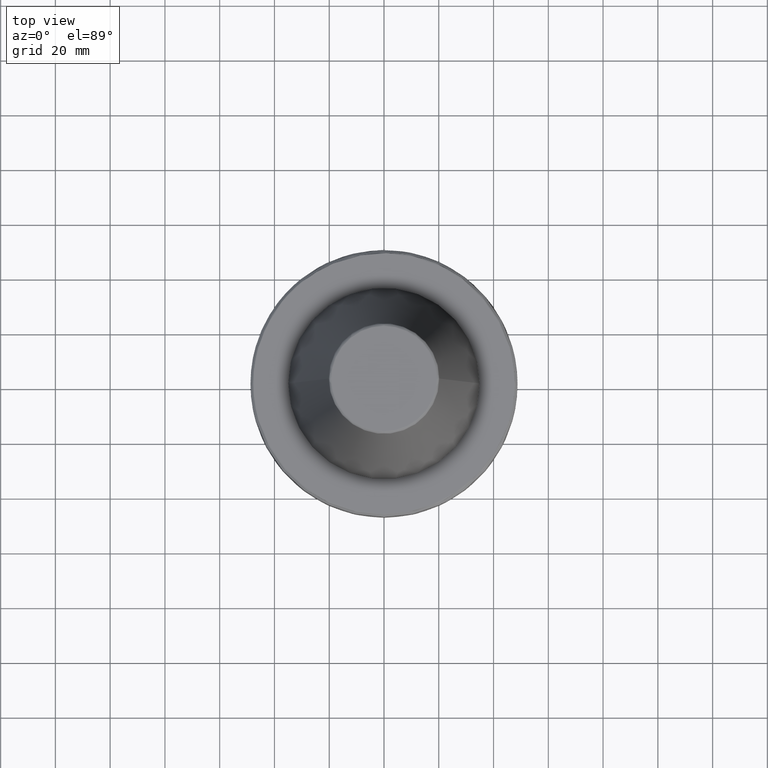
[diagram: clean part render]
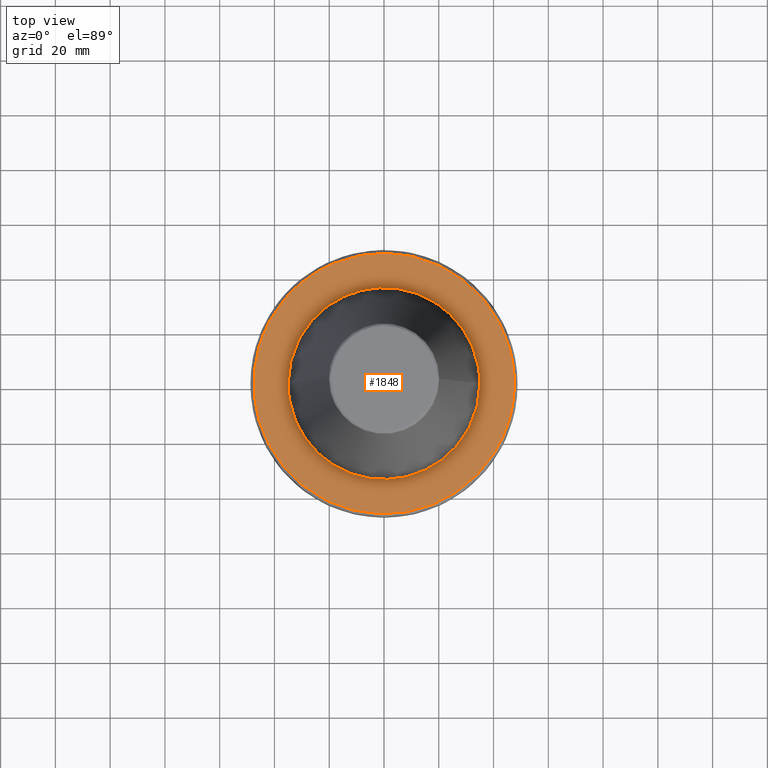
[diagram: same view with one face highlighted and labeled with its STEP entity id]
A machine part, top view. The second image highlights one B-rep face of the part: STEP entity #1848.
In plain terms, the highlighted planar face has unit normal (0, 0, 1).
Its self-contained STEP definition (entity closure, byte-faithful):
#16 = CARTESIAN_POINT ( 'NONE',  ( 29.58867595935849000, 37.26711317191480800, -3.200000000000000600 ) ) ;
#22 = CARTESIAN_POINT ( 'NONE',  ( -34.42781351200215300, 6.302914691289114300, -3.200000000000000200 ) ) ;
#23 = CARTESIAN_POINT ( 'NONE',  ( -35.00000000000000000, 4.286263797015737300E-015, -3.200000000000000600 ) ) ;
#28 = CARTESIAN_POINT ( 'NONE',  ( 43.83677434805175500, 18.51023748605553000, -3.199999999999999700 ) ) ;
#34 = CARTESIAN_POINT ( 'NONE',  ( -30.38123465407781200, 17.39569460392992200, -3.199999999999998800 ) ) ;
#50 = DIRECTION ( 'NONE',  ( 1.000000000000000000, 0.0000000000000000000, -0.0000000000000000000 ) ) ;
#52 = CARTESIAN_POINT ( 'NONE',  ( -19.40440699318107300, 29.12859832659959000, -3.200000000000000200 ) ) ;
#54 = CARTESIAN_POINT ( 'NONE',  ( 33.82018250935284000, -9.135985986330826600, -3.199999999999999700 ) ) ;
#65 = CARTESIAN_POINT ( 'NONE',  ( -10.22234251034705100, 33.50782965913711600, -3.200000000000000200 ) ) ;
#68 = CARTESIAN_POINT ( 'NONE',  ( 29.45563184198762100, -18.90427742788056500, -3.200000000000000600 ) ) ;
#79 = CARTESIAN_POINT ( 'NONE',  ( 5.446642676596225000, 34.57547315144680800, -3.200000000000000600 ) ) ;
#83 = CARTESIAN_POINT ( 'NONE',  ( 18.16253543797202500, -29.94197833481824500, -3.200000000000000600 ) ) ;
#92 = CARTESIAN_POINT ( 'NONE',  ( 12.81732741286386600, 32.56865578623165900, -3.200000000000001100 ) ) ;
#93 = CARTESIAN_POINT ( 'NONE',  ( 6.856257133420490900, -34.32241613434766900, -3.199999999999999700 ) ) ;
#97 = B_SPLINE_CURVE_WITH_KNOTS ( 'NONE', 3,
 ( #1762, #1656, #2515, #1744, #2701, #1736, #1759, #1653, #1668, #1670, #1748, #1732, #1731, #1725, #1719, #1716, #1715, #1710, #1708, #1705, #1700, #1699, #1690, #1689, #1684, #1682, #1941, #1664, #1677, #2159, #2144, #2363, #1797, #1648, #1646, #1638, #1637, #1634, #1629, #1620, #1616, #1615, #1610, #1609, #1604, #1599, #1594, #1593, #1588, #1574, #1573, #1568, #1564, #1557, #1551, #1544, #1543, #1534, #1527, #1518, #1517, #1514, #1513, #1510, #1501, #1499, #1489, #1488, #1484, #1479, #1477, #1472, #1465, #1461, #1460, #1456, #1453, #1451, #1449, #1445, #1442, #1440, #1433, #1425, #1424, #1421, #1420, #1416, #1409, #1408, #1404, #1401, #1397, #1392, #1385, #1381, #1375, #1366, #1364, #1360, #1353, #1349, #1348, #1344, #1337, #1331, #1325, #1324 ),
 .UNSPECIFIED., .F., .F.,
 ( 4, 1, 1, 1, 1, 1, 2, 2, 1, 1, 1, 1, 2, 2, 1, 1, 1, 2, 2, 2, 1, 1, 1, 1, 2, 2, 1, 1, 1, 1, 2, 2, 1, 1, 1, 1, 1, 2, 2, 2, 1, 1, 1, 1, 1, 2, 2, 1, 1, 1, 1, 2, 2, 1, 1, 1, 2, 2, 2, 1, 1, 1, 1, 2, 2, 1, 1, 1, 1, 2, 2, 1, 1, 1, 1, 1, 2, 2, 4 ),
 ( 0.0000000000000000000, 0.03125000000000047200, 0.04687500000000072200, 0.05468750000000088100, 0.05859375000000093000, 0.06054687500000095100, 0.06152343750000092300, 0.06250000000000088800, 0.09375000000000043000, 0.1093750000000001900, 0.1171875000000000800, 0.1210937499999999900, 0.1230468749999999200, 0.1249999999999998500, 0.1562499999999995300, 0.1718749999999993300, 0.1796874999999993100, 0.1835937499999992800, 0.1874999999999992500, 0.2499999999999999400, 0.2812500000000002200, 0.2968750000000003900, 0.3046875000000004400, 0.3085937500000004400, 0.3105468750000004400, 0.3125000000000005000, 0.3437500000000003300, 0.3593750000000002800, 0.3671875000000002800, 0.3710937500000002800, 0.3730468750000002200, 0.3750000000000002200, 0.4062500000000001100, 0.4218750000000000600, 0.4296875000000000000, 0.4335937500000000000, 0.4355468749999999400, 0.4365234374999999400, 0.4374999999999998900, 0.4999999999999983900, 0.5312499999999975600, 0.5468749999999971100, 0.5546874999999968900, 0.5585937499999967800, 0.5605468749999966700, 0.5615234374999966700, 0.5624999999999966700, 0.5937499999999962300, 0.6093749999999958900, 0.6171874999999956700, 0.6210937499999955600, 0.6230468749999956700, 0.6249999999999956700, 0.6562499999999958900, 0.6718749999999960000, 0.6796874999999961100, 0.6835937499999961100, 0.6874999999999960000, 0.7499999999999953400, 0.7812499999999950000, 0.7968749999999948900, 0.8046874999999948900, 0.8085937499999948900, 0.8105468749999948900, 0.8124999999999948900, 0.8437499999999962300, 0.8593749999999967800, 0.8671874999999970000, 0.8710937499999971100, 0.8730468749999972200, 0.8749999999999972200, 0.9062499999999974500, 0.9218749999999976700, 0.9296874999999977800, 0.9335937499999978900, 0.9355468749999978900, 0.9365234374999978900, 0.9374999999999978900, 1.000000000000000000 ),
 .UNSPECIFIED. ) ;
#106 = CARTESIAN_POINT ( 'NONE',  ( 26.81177841657013900, 22.55445595757559800, -3.200000000000000200 ) ) ;
#110 = CARTESIAN_POINT ( 'NONE',  ( -6.237098849438081200, -34.43979846253916600, -3.200000000000000200 ) ) ;
#119 = CARTESIAN_POINT ( 'NONE',  ( 32.48790124032222300, 13.02066417721462900, -3.200000000000000200 ) ) ;
#122 = CARTESIAN_POINT ( 'NONE',  ( -15.59116830090281700, -31.37487172761408500, -3.200000000000001500 ) ) ;
#129 = CARTESIAN_POINT ( 'NONE',  ( 44.89884780774589500, 15.80948444982595000, -3.200000000000000200 ) ) ;
#132 = CARTESIAN_POINT ( 'NONE',  ( 35.00000000000001400, 2.140949734381700300, -3.200000000000000600 ) ) ;
#133 = CARTESIAN_POINT ( 'NONE',  ( -29.00292566128046800, -19.59265025306582700, -3.200000000000000600 ) ) ;
#150 = CARTESIAN_POINT ( 'NONE',  ( -32.96036308136418600, -11.82808836360453800, -3.200000000000000600 ) ) ;
#152 = CARTESIAN_POINT ( 'NONE',  ( -28.52667124222444200, 38.13264634449122100, -3.200000000000000200 ) ) ;
#161 = CARTESIAN_POINT ( 'NONE',  ( 24.74573972520320100, 40.64394770848628000, -3.199999999999999700 ) ) ;
#206 = CARTESIAN_POINT ( 'NONE',  ( -1.415082110017375400, 47.56778356128077000, -3.200000000000001100 ) ) ;
#207 = AXIS2_PLACEMENT_3D ( 'NONE', #1181, #1176, #1169 ) ;
#244 = CARTESIAN_POINT ( 'NONE',  ( -13.13810827484324400, 45.73940813873869600, -3.200000000000001100 ) ) ;
#247 = EDGE_LOOP ( 'NONE', ( #4068, #596, #1161, #1224, #1767, #1575, #2358 ) ) ;
#250 = AXIS2_PLACEMENT_3D ( 'NONE', #2086, #2553, #50 ) ;
#314 = CARTESIAN_POINT ( 'NONE',  ( 43.72038509902864000, 18.78292708330470600, -3.200000000000000200 ) ) ;
#319 = CARTESIAN_POINT ( 'NONE',  ( 7.584584315874153000, 46.98600002214963200, -3.199999999999999700 ) ) ;
#344 = CARTESIAN_POINT ( 'NONE',  ( 15.87259900951194100, 44.89906720438591500, -3.199999999999999300 ) ) ;
#367 = CARTESIAN_POINT ( 'NONE',  ( -34.20919177140901000, 7.484680064057585900, -3.200000000000000200 ) ) ;
#385 = CARTESIAN_POINT ( 'NONE',  ( -29.57513658499466700, 18.71766838408074600, -3.200000000000000200 ) ) ;
#389 = CARTESIAN_POINT ( 'NONE',  ( 34.92696098682253600, -2.669108274075315400, -3.200000000000001100 ) ) ;
#400 = CARTESIAN_POINT ( 'NONE',  ( -19.21420423913537700, 29.25439692751829300, -3.200000000000001100 ) ) ;
#403 = CARTESIAN_POINT ( 'NONE',  ( 32.89666700154338500, -11.95639371354541900, -3.200000000000000600 ) ) ;
#411 = CARTESIAN_POINT ( 'NONE',  ( -7.342137192614635500, 34.22336994003888600, -3.200000000000000200 ) ) ;
#416 = CARTESIAN_POINT ( 'NONE',  ( 29.33615436353597900, -19.08915049026279600, -3.200000000000001100 ) ) ;
#423 = CARTESIAN_POINT ( 'NONE',  ( 6.138370408955123200, 34.45763170187248600, -3.200000000000000600 ) ) ;
#429 = CARTESIAN_POINT ( 'NONE',  ( 14.78401017750829600, -31.73425127813054300, -3.199999999999999700 ) ) ;
#438 = CARTESIAN_POINT ( 'NONE',  ( 13.98287206292189900, 32.10730462063747100, -3.200000000000000600 ) ) ;
#441 = CARTESIAN_POINT ( 'NONE',  ( 6.508170961267519600, -34.38960595214408000, -3.200000000000000200 ) ) ;
#448 = FACE_BOUND ( 'NONE', #1097, .T. ) ;
#450 = CARTESIAN_POINT ( 'NONE',  ( 28.70573247902078500, 20.02866069165706600, -3.200000000000000200 ) ) ;
#452 = CARTESIAN_POINT ( 'NONE',  ( -6.333832670997710000, -34.42214089842946100, -3.200000000000000200 ) ) ;
#460 = CARTESIAN_POINT ( 'NONE',  ( 32.52953514517933100, 12.91629066188748200, -3.200000000000001100 ) ) ;
#463 = CARTESIAN_POINT ( 'NONE',  ( -18.28000292855092800, -29.84963310932764500, -3.199999999999999700 ) ) ;
#478 = CARTESIAN_POINT ( 'NONE',  ( -29.21200324985685300, -19.27860445471714700, -3.200000000000000600 ) ) ;
#494 = CARTESIAN_POINT ( 'NONE',  ( -34.00795424931148100, -8.308886591280263200, -3.200000000000000600 ) ) ;
#570 = CARTESIAN_POINT ( 'NONE',  ( 20.91936532353698300, 42.74416180623448700, -3.200000000000000600 ) ) ;
#577 = CARTESIAN_POINT ( 'NONE',  ( 33.13646789430458700, 34.16474037057050600, -3.200000000000000600 ) ) ;
#584 = CARTESIAN_POINT ( 'NONE',  ( 43.28805540108506700, 19.78267870937098700, -3.200000000000000200 ) ) ;
#593 = CARTESIAN_POINT ( 'NONE',  ( -24.66047681321442300, 40.69683095873308800, -3.200000000000001100 ) ) ;
#596 = ORIENTED_EDGE ( 'NONE', *, *, #2294, .T. ) ;
#598 = CARTESIAN_POINT ( 'NONE',  ( 43.69747580304702700, 18.83616776526730200, -3.199999999999999700 ) ) ;
#646 = CARTESIAN_POINT ( 'NONE',  ( 27.43086430564404300, 38.90399569013028000, -3.199999999999999700 ) ) ;
#673 = CARTESIAN_POINT ( 'NONE',  ( -22.45806956475531600, 41.97089674870178300, -3.199999999999999700 ) ) ;
#703 = CARTESIAN_POINT ( 'NONE',  ( -33.22762448502673000, 11.02286519843548100, -3.199999999999999300 ) ) ;
#718 = CARTESIAN_POINT ( 'NONE',  ( -29.37554792989231300, 19.02846970913294200, -3.200000000000000600 ) ) ;
#720 = CARTESIAN_POINT ( 'NONE',  ( 35.00000000000000000, 0.0000000000000000000, -3.200000000000000600 ) ) ;
#730 = CARTESIAN_POINT ( 'NONE',  ( -16.63655267340255200, 30.83329837198616000, -3.200000000000001100 ) ) ;
#735 = CARTESIAN_POINT ( 'NONE',  ( 32.63327705773191000, -12.65220399757075000, -3.199999999999999700 ) ) ;
#745 = CARTESIAN_POINT ( 'NONE',  ( -6.612690763923023200, 34.36977381871476900, -3.200000000000000200 ) ) ;
#750 = CARTESIAN_POINT ( 'NONE',  ( 26.45700235552588400, -23.04041976314191200, -3.199999999999999300 ) ) ;
#762 = CARTESIAN_POINT ( 'NONE',  ( 6.302909256718462100, 34.42781451759762500, -3.199999999999999300 ) ) ;
#765 = CARTESIAN_POINT ( 'NONE',  ( 13.36300299978126000, -32.34918825183396500, -3.200000000000000600 ) ) ;
#775 = CARTESIAN_POINT ( 'NONE',  ( 17.39569460393197900, 30.38123465408075700, -3.200000000000000200 ) ) ;
#777 = CARTESIAN_POINT ( 'NONE',  ( 6.401592451894831700, -34.40960181707281900, -3.199999999999999700 ) ) ;
#783 = CARTESIAN_POINT ( 'NONE',  ( 4.460096613536384400, 47.37922375094827000, -3.200000000000001500 ) ) ;
#787 = CARTESIAN_POINT ( 'NONE',  ( 29.12859832661076400, 19.40440699316710000, -3.200000000000000200 ) ) ;
#791 = CARTESIAN_POINT ( 'NONE',  ( -9.135985986387860100, -33.82018250934229500, -3.199999999999999700 ) ) ;
#794 = CARTESIAN_POINT ( 'NONE',  ( 41.16595836708885500, 23.86724792863052300, -3.200000000000000200 ) ) ;
#796 = CARTESIAN_POINT ( 'NONE',  ( 33.50782965918070000, 10.22234251020762700, -3.199999999999999700 ) ) ;
#803 = CARTESIAN_POINT ( 'NONE',  ( -18.90427742788488900, -29.45563184198417900, -3.200000000000000600 ) ) ;
#812 = CARTESIAN_POINT ( 'NONE',  ( 9.354935358589495200, 46.65674270211674500, -3.200000000000000600 ) ) ;
#819 = CARTESIAN_POINT ( 'NONE',  ( -29.94197833479797300, -18.16253543799919300, -3.200000000000000600 ) ) ;
#829 = CARTESIAN_POINT ( 'NONE',  ( -34.32241613434451500, -6.856257133437938300, -3.200000000000000200 ) ) ;
#893 = CARTESIAN_POINT ( 'NONE',  ( -25.17660737734825100, 40.37832428545157600, -3.200000000000000200 ) ) ;
#926 = EDGE_CURVE ( 'NONE', #2958, #4100, #97, .T. ) ;
#971 = CARTESIAN_POINT ( 'NONE',  ( -10.01342565813241200, 46.52941323171096900, -3.200000000000000200 ) ) ;
#974 = CARTESIAN_POINT ( 'NONE',  ( 0.0000000000000000000, 0.0000000000000000000, -3.200000000000001500 ) ) ;
#993 = CARTESIAN_POINT ( 'NONE',  ( 25.99808194461567700, 39.85970698513112600, -3.200000000000000200 ) ) ;
#998 = EDGE_CURVE ( 'NONE', #4100, #3786, #3320, .T. ) ;
#1025 = CARTESIAN_POINT ( 'NONE',  ( -2.645014036823139400, 47.51138638385852200, -3.200000000000000600 ) ) ;
#1028 = CARTESIAN_POINT ( 'NONE',  ( -32.72251864197475200, 12.42068019834804300, -3.200000000000000600 ) ) ;
#1043 = CARTESIAN_POINT ( 'NONE',  ( -27.97287582442092500, 21.17444947139290100, -3.200000000000000600 ) ) ;
#1048 = CARTESIAN_POINT ( 'NONE',  ( 34.57546073590583500, -5.446709774287297600, -3.200000000000000200 ) ) ;
#1054 = CARTESIAN_POINT ( 'NONE',  ( 36.53624278579643200, 30.55028448884537800, -3.200000000000000600 ) ) ;
#1058 = CARTESIAN_POINT ( 'NONE',  ( -13.83968161197703100, 32.14999761353126200, -3.200000000000000200 ) ) ;
#1063 = CARTESIAN_POINT ( 'NONE',  ( 32.56865578623111200, -12.81732741286599300, -3.199999999999999700 ) ) ;
#1078 = CARTESIAN_POINT ( 'NONE',  ( -6.438461267135233300, 34.40272425953072900, -3.200000000000000200 ) ) ;
#1081 = CARTESIAN_POINT ( 'NONE',  ( 22.55445595765087700, -26.81177841650848100, -3.200000000000001500 ) ) ;
#1089 = CARTESIAN_POINT ( 'NONE',  ( 7.484680064034233900, 34.20919177141554000, -3.199999999999999700 ) ) ;
#1093 = CARTESIAN_POINT ( 'NONE',  ( 13.02066417721918300, -32.48790124032010600, -3.200000000000000600 ) ) ;
#1097 = EDGE_LOOP ( 'NONE', ( #2860, #1500 ) ) ;
#1103 = CARTESIAN_POINT ( 'NONE',  ( 18.71766838408140600, 29.57513658499558300, -3.200000000000000600 ) ) ;
#1108 = CARTESIAN_POINT ( 'NONE',  ( 2.140418918370826000, -34.99996756755254500, -3.199999999999999700 ) ) ;
#1117 = CARTESIAN_POINT ( 'NONE',  ( 29.25439692751638500, 19.21420423913906100, -3.200000000000000200 ) ) ;
#1119 = CARTESIAN_POINT ( 'NONE',  ( -11.95639371357037600, -32.89666700153875900, -3.200000000000000600 ) ) ;
#1123 = CARTESIAN_POINT ( 'NONE',  ( 34.22336994005794300, 7.342137192553624700, -3.200000000000000200 ) ) ;
#1125 = CARTESIAN_POINT ( 'NONE',  ( -19.08915049026184700, -29.33615436353641900, -3.200000000000000600 ) ) ;
#1137 = B_SPLINE_CURVE_WITH_KNOTS ( 'NONE', 3,
 ( #2926, #2939, #1714, #1709, #3791, #3759 ),
 .UNSPECIFIED., .F., .F.,
 ( 4, 2, 4 ),
 ( 0.0000000000000000000, 0.5000000000000000000, 1.000000000000000000 ),
 .UNSPECIFIED. ) ;
#1143 = CARTESIAN_POINT ( 'NONE',  ( -31.73425127810394000, -14.78401017754392500, -3.200000000000000600 ) ) ;
#1157 = CARTESIAN_POINT ( 'NONE',  ( -34.38960595214313500, -6.508170961272730500, -3.200000000000000600 ) ) ;
#1161 = ORIENTED_EDGE ( 'NONE', *, *, #1741, .T. ) ;
#1163 = CARTESIAN_POINT ( 'NONE',  ( 22.43503376051662800, 41.98321477246887700, -3.200000000000000600 ) ) ;
#1169 = DIRECTION ( 'NONE',  ( 1.000000000000000000, 0.0000000000000000000, 0.0000000000000000000 ) ) ;
#1176 = DIRECTION ( 'NONE',  ( -0.0000000000000000000, -0.0000000000000000000, 1.000000000000000000 ) ) ;
#1178 = DIRECTION ( 'NONE',  ( 1.000000000000000000, 0.0000000000000000000, 0.0000000000000000000 ) ) ;
#1181 = CARTESIAN_POINT ( 'NONE',  ( 0.0000000000000000000, 0.0000000000000000000, -3.200000000000001500 ) ) ;
#1218 = CARTESIAN_POINT ( 'NONE',  ( -30.00000000000000000, 36.93598507658067100, -3.200000000000001500 ) ) ;
#1224 = ORIENTED_EDGE ( 'NONE', *, *, #926, .T. ) ;
#1287 = CARTESIAN_POINT ( 'NONE',  ( 29.78434383588273700, 37.11093869942935400, -3.200000000000001100 ) ) ;
#1301 = DIRECTION ( 'NONE',  ( 1.000000000000000000, 0.0000000000000000000, 0.0000000000000000000 ) ) ;
#1324 = CARTESIAN_POINT ( 'NONE',  ( 45.61430141498814100, -13.55000000000001700, -3.200000000000001500 ) ) ;
#1325 = CARTESIAN_POINT ( 'NONE',  ( 44.92181312361564900, -15.88117119180926200, -3.200000000000000600 ) ) ;
#1331 = CARTESIAN_POINT ( 'NONE',  ( 44.05578048503274900, -18.14579602856428800, -3.200000000000001100 ) ) ;
#1333 = CARTESIAN_POINT ( 'NONE',  ( -23.93254399511004500, 41.13291324448347600, -3.199999999999999300 ) ) ;
#1337 = CARTESIAN_POINT ( 'NONE',  ( 42.99996010883646800, -20.37821948654144700, -3.200000000000000200 ) ) ;
#1344 = CARTESIAN_POINT ( 'NONE',  ( 42.98237818865935400, -20.41528033294669700, -3.199999999999999700 ) ) ;
#1348 = CARTESIAN_POINT ( 'NONE',  ( 42.94842543565792400, -20.48661267979043300, -3.199999999999999700 ) ) ;
#1349 = CARTESIAN_POINT ( 'NONE',  ( 42.89736886373451300, -20.59353772421794900, -3.200000000000000200 ) ) ;
#1350 = CARTESIAN_POINT ( 'NONE',  ( -34.71393053172149500, 4.522777660849747000, -3.199999999999999700 ) ) ;
#1353 = CARTESIAN_POINT ( 'NONE',  ( 42.77734476563084300, -20.84251516368223600, -3.199999999999999300 ) ) ;
#1358 = CARTESIAN_POINT ( 'NONE',  ( 41.10589712480054900, 23.97055010317598100, -3.200000000000000600 ) ) ;
#1360 = CARTESIAN_POINT ( 'NONE',  ( 42.53372818162753800, -21.33841271914445100, -3.200000000000000200 ) ) ;
#1364 = CARTESIAN_POINT ( 'NONE',  ( 42.03222146243693700, -22.32197853620333600, -3.199999999999999700 ) ) ;
#1366 = CARTESIAN_POINT ( 'NONE',  ( 40.97211381931980200, -24.25619299485906300, -3.199999999999999700 ) ) ;
#1367 = CARTESIAN_POINT ( 'NONE',  ( -32.59456622067332200, 12.75129574512329000, -3.200000000000000200 ) ) ;
#1373 = CARTESIAN_POINT ( 'NONE',  ( 6.146894581347632800, 47.20314471345571400, -3.200000000000001100 ) ) ;
#1375 = CARTESIAN_POINT ( 'NONE',  ( 39.96557434567207400, -25.85766165862904500, -3.200000000000000200 ) ) ;
#1381 = CARTESIAN_POINT ( 'NONE',  ( 39.20638976705200900, -26.96538805818731900, -3.200000000000000200 ) ) ;
#1382 = CARTESIAN_POINT ( 'NONE',  ( -23.89460483454596200, 25.60289613071151700, -3.199999999999999700 ) ) ;
#1385 = CARTESIAN_POINT ( 'NONE',  ( 39.15911966686138600, -27.03399514045408500, -3.200000000000000200 ) ) ;
#1386 = CARTESIAN_POINT ( 'NONE',  ( 34.45762826542811300, -6.138388980637482300, -3.200000000000000600 ) ) ;
#1392 = CARTESIAN_POINT ( 'NONE',  ( 39.06671061190711200, -27.16737028581813000, -3.199999999999999300 ) ) ;
#1397 = CARTESIAN_POINT ( 'NONE',  ( 38.92761599110149700, -27.36704069051690200, -3.199999999999999700 ) ) ;
#1398 = CARTESIAN_POINT ( 'NONE',  ( -13.12353511134512400, 32.44661293862448300, -3.200000000000000200 ) ) ;
#1401 = CARTESIAN_POINT ( 'NONE',  ( 38.59969460726873800, -27.83019210804948800, -3.199999999999999700 ) ) ;
#1402 = CARTESIAN_POINT ( 'NONE',  ( 32.10730462062537800, -13.98287206293925200, -3.200000000000001500 ) ) ;
#1404 = CARTESIAN_POINT ( 'NONE',  ( 37.93038276512478300, -28.74551016938989500, -3.200000000000000200 ) ) ;
#1406 = CARTESIAN_POINT ( 'NONE',  ( 30.16990998852274000, 36.79819512847421900, -3.200000000000000200 ) ) ;
#1408 = CARTESIAN_POINT ( 'NONE',  ( 36.53788278292293500, -30.53220719717160100, -3.199999999999999700 ) ) ;
#1409 = CARTESIAN_POINT ( 'NONE',  ( 35.25195200175464500, -31.98833762972892800, -3.200000000000000200 ) ) ;
#1411 = CARTESIAN_POINT ( 'NONE',  ( -4.264027316417490000, 34.80519685506052200, -3.200000000000000200 ) ) ;
#1416 = CARTESIAN_POINT ( 'NONE',  ( 34.29747021916345100, -32.98419360930062500, -3.200000000000000200 ) ) ;
#1417 = CARTESIAN_POINT ( 'NONE',  ( 20.02866069168999600, -28.70573247899380900, -3.199999999999999700 ) ) ;
#1420 = CARTESIAN_POINT ( 'NONE',  ( 34.23960624552837800, -33.04425963288301200, -3.200000000000000600 ) ) ;
#1421 = CARTESIAN_POINT ( 'NONE',  ( 34.12517462232580800, -33.16242677105037000, -3.200000000000000200 ) ) ;
#1424 = CARTESIAN_POINT ( 'NONE',  ( 33.95310552516566800, -33.33919882938212000, -3.199999999999998800 ) ) ;
#1425 = CARTESIAN_POINT ( 'NONE',  ( 33.54865932863149400, -33.74831642305488800, -3.199999999999999700 ) ) ;
#1427 = CARTESIAN_POINT ( 'NONE',  ( 11.02286519840483300, 33.22762448503527100, -3.200000000000000200 ) ) ;
#1428 = CIRCLE ( 'NONE', #1913, 47.58431457505077600 ) ;
#1430 = CARTESIAN_POINT ( 'NONE',  ( 12.91629066188754700, -32.52953514517923800, -3.200000000000000600 ) ) ;
#1433 = CARTESIAN_POINT ( 'NONE',  ( 32.72796038958762900, -34.55314944066136500, -3.200000000000000200 ) ) ;
#1440 = CARTESIAN_POINT ( 'NONE',  ( 31.03933632759788000, -36.10920679691846400, -3.200000000000000600 ) ) ;
#1441 = CARTESIAN_POINT ( 'NONE',  ( 19.02846970913313700, 29.37554792989258000, -3.199999999999999700 ) ) ;
#1442 = CARTESIAN_POINT ( 'NONE',  ( 29.51098510206039500, -37.35106965264294100, -3.200000000000000600 ) ) ;
#1444 = CARTESIAN_POINT ( 'NONE',  ( -2.668954907877634200, -34.92698936521405500, -3.200000000000001500 ) ) ;
#1445 = CARTESIAN_POINT ( 'NONE',  ( 26.34633708778084600, -39.71226124076409300, -3.200000000000000600 ) ) ;
#1449 = CARTESIAN_POINT ( 'NONE',  ( 24.12040806564777600, -41.10236839384867800, -3.200000000000000200 ) ) ;
#1451 = CARTESIAN_POINT ( 'NONE',  ( 21.63374689601685200, -42.38248318243609700, -3.199999999999999700 ) ) ;
#1452 = CARTESIAN_POINT ( 'NONE',  ( 30.83329837203913100, 16.63655267329933100, -3.200000000000000600 ) ) ;
#1453 = CARTESIAN_POINT ( 'NONE',  ( 21.49105359669900000, -42.45501299875800100, -3.199999999999999300 ) ) ;
#1454 = CARTESIAN_POINT ( 'NONE',  ( -12.65220399757766000, -32.63327705773065200, -3.199999999999999300 ) ) ;
#1456 = CARTESIAN_POINT ( 'NONE',  ( 21.20113734484077700, -42.60054918465715400, -3.200000000000000200 ) ) ;
#1460 = CARTESIAN_POINT ( 'NONE',  ( 20.76531420096193200, -42.81655896316620200, -3.199999999999998800 ) ) ;
#1461 = CARTESIAN_POINT ( 'NONE',  ( 19.74175216927086400, -43.30452027730983400, -3.199999999999998800 ) ) ;
#1463 = CARTESIAN_POINT ( 'NONE',  ( 34.36977381872005600, 6.612690763906142500, -3.200000000000000200 ) ) ;
#1465 = CARTESIAN_POINT ( 'NONE',  ( 17.66806265532686700, -44.21619689608675000, -3.200000000000000600 ) ) ;
#1467 = CARTESIAN_POINT ( 'NONE',  ( -23.04041976309767400, -26.45700235558571100, -3.199999999999999700 ) ) ;
#1472 = CARTESIAN_POINT ( 'NONE',  ( 15.84507372812600100, -44.88749798159219800, -3.200000000000000200 ) ) ;
#1477 = CARTESIAN_POINT ( 'NONE',  ( 14.53228453995149900, -45.31099424279307200, -3.200000000000000200 ) ) ;
#1479 = CARTESIAN_POINT ( 'NONE',  ( 14.45906218183378800, -45.33440982915177400, -3.200000000000000200 ) ) ;
#1482 = CARTESIAN_POINT ( 'NONE',  ( -32.34918825182566600, -13.36300299979238400, -3.200000000000000200 ) ) ;
#1484 = CARTESIAN_POINT ( 'NONE',  ( 14.30848230521136000, -45.38216414504324100, -3.200000000000001500 ) ) ;
#1488 = CARTESIAN_POINT ( 'NONE',  ( 14.08247786519502900, -45.45322280363668500, -3.200000000000001500 ) ) ;
#1489 = CARTESIAN_POINT ( 'NONE',  ( 13.55419179624474600, -45.61501663364831000, -3.199999999999999700 ) ) ;
#1490 = CARTESIAN_POINT ( 'NONE',  ( -45.61430141498814800, -13.54999999999997900, -3.200000000000000200 ) ) ;
#1493 = CARTESIAN_POINT ( 'NONE',  ( -34.40960131014864500, -6.401595191017770000, -3.200000000000000600 ) ) ;
#1499 = CARTESIAN_POINT ( 'NONE',  ( 12.49385015602891300, -45.92256546684609500, -3.199999999999999700 ) ) ;
#1500 = ORIENTED_EDGE ( 'NONE', *, *, #2758, .T. ) ;
#1501 = CARTESIAN_POINT ( 'NONE',  ( 10.35808886633598500, -46.47350782593964900, -3.200000000000001100 ) ) ;
#1510 = CARTESIAN_POINT ( 'NONE',  ( 8.501588316437104000, -46.83576360693069100, -3.200000000000001500 ) ) ;
#1513 = CARTESIAN_POINT ( 'NONE',  ( 7.213397181104941300, -47.03440671491043900, -3.200000000000000200 ) ) ;
#1514 = CARTESIAN_POINT ( 'NONE',  ( 7.177316945109732100, -47.03992463040859900, -3.200000000000000600 ) ) ;
#1517 = CARTESIAN_POINT ( 'NONE',  ( 7.102190460192149500, -47.05132629008071600, -3.200000000000000200 ) ) ;
#1518 = CARTESIAN_POINT ( 'NONE',  ( 6.989490578903475400, -47.06829303564229100, -3.200000000000000600 ) ) ;
#1527 = CARTESIAN_POINT ( 'NONE',  ( 6.726453111843754900, -47.10693190099277000, -3.200000000000000600 ) ) ;
#1534 = CARTESIAN_POINT ( 'NONE',  ( 6.200093868179776800, -47.18040880118783100, -3.200000000000000600 ) ) ;
#1541 = CARTESIAN_POINT ( 'NONE',  ( -2.889151954426300700, 47.49717070755006900, -3.199999999999999700 ) ) ;
#1543 = CARTESIAN_POINT ( 'NONE',  ( 5.146238142673630600, -47.31215927955445700, -3.200000000000001100 ) ) ;
#1544 = CARTESIAN_POINT ( 'NONE',  ( 3.033977738948592700, -47.51484694819340100, -3.199999999999999700 ) ) ;
#1551 = CARTESIAN_POINT ( 'NONE',  ( 1.215670616819547900, -47.58432788457945900, -3.200000000000000200 ) ) ;
#1557 = CARTESIAN_POINT ( 'NONE',  ( -2.431341233639090500, -47.58428795599334600, -3.200000000000000200 ) ) ;
#1564 = CARTESIAN_POINT ( 'NONE',  ( -4.849501380430657700, -47.39897883243537500, -3.200000000000000200 ) ) ;
#1568 = CARTESIAN_POINT ( 'NONE',  ( -7.289979086985088200, -47.02259673295161900, -3.199999999999999700 ) ) ;
#1573 = CARTESIAN_POINT ( 'NONE',  ( -7.330514881583365400, -47.01629565795770600, -3.200000000000000200 ) ) ;
#1574 = CARTESIAN_POINT ( 'NONE',  ( -7.408562343358871000, -47.00406100007025900, -3.199999999999999700 ) ) ;
#1575 = ORIENTED_EDGE ( 'NONE', *, *, #2168, .T. ) ;
#1578 = CARTESIAN_POINT ( 'NONE',  ( -15.73464554186262600, 44.91837702302721900, -3.199999999999999700 ) ) ;
#1588 = CARTESIAN_POINT ( 'NONE',  ( -7.525599392329287900, -46.98556592418377400, -3.200000000000000600 ) ) ;
#1593 = CARTESIAN_POINT ( 'NONE',  ( -7.798446834077053000, -46.94140912372788700, -3.200000000000001100 ) ) ;
#1594 = CARTESIAN_POINT ( 'NONE',  ( -8.343185694173039100, -46.84908902926665100, -3.200000000000001500 ) ) ;
#1598 = CARTESIAN_POINT ( 'NONE',  ( 41.46762625119976800, 23.34110521963310000, -3.199999999999999700 ) ) ;
#1599 = CARTESIAN_POINT ( 'NONE',  ( -9.428839320766936500, -46.64842286614644700, -3.200000000000000600 ) ) ;
#1604 = CARTESIAN_POINT ( 'NONE',  ( -11.58485019956228600, -46.18298664311497200, -3.200000000000001100 ) ) ;
#1609 = CARTESIAN_POINT ( 'NONE',  ( -13.40663716814271200, -45.67414891458896900, -3.200000000000000200 ) ) ;
#1610 = CARTESIAN_POINT ( 'NONE',  ( -14.68468682495045000, -45.26182855948074000, -3.199999999999999700 ) ) ;
#1612 = CARTESIAN_POINT ( 'NONE',  ( 8.656115448807391000, 46.79040597101618500, -3.199999999999999700 ) ) ;
#1615 = CARTESIAN_POINT ( 'NONE',  ( -14.76391406654437000, -45.23605185881606900, -3.199999999999999700 ) ) ;
#1616 = CARTESIAN_POINT ( 'NONE',  ( -14.91808160770816200, -45.18544818221096200, -3.199999999999998800 ) ) ;
#1620 = CARTESIAN_POINT ( 'NONE',  ( -15.14909382744679800, -45.10896982989867600, -3.199999999999999700 ) ) ;
#1629 = CARTESIAN_POINT ( 'NONE',  ( -15.68644869612092000, -44.92651047933753700, -3.199999999999999700 ) ) ;
#1634 = CARTESIAN_POINT ( 'NONE',  ( -16.75446385727170900, -44.54555233088539300, -3.200000000000001100 ) ) ;
#1637 = CARTESIAN_POINT ( 'NONE',  ( -18.86371587478346300, -43.71947824466165900, -3.199999999999999700 ) ) ;
#1638 = CARTESIAN_POINT ( 'NONE',  ( -20.62574051015388200, -42.90142996049365100, -3.200000000000000600 ) ) ;
#1646 = CARTESIAN_POINT ( 'NONE',  ( -21.85216361823522400, -42.27004183452079600, -3.200000000000000600 ) ) ;
#1648 = CARTESIAN_POINT ( 'NONE',  ( -21.92622009206989400, -42.23167771955523600, -3.200000000000000600 ) ) ;
#1650 = CARTESIAN_POINT ( 'NONE',  ( -17.12310430754070400, 44.41590363918441400, -3.200000000000001100 ) ) ;
#1653 = CARTESIAN_POINT ( 'NONE',  ( -43.08097109733164100, -20.20639356878837800, -3.199999999999999700 ) ) ;
#1656 = CARTESIAN_POINT ( 'NONE',  ( -45.26810526762550100, -14.71542401583079500, -3.200000000000000200 ) ) ;
#1664 = CARTESIAN_POINT ( 'NONE',  ( -27.40123742081011900, -38.92522104882938500, -3.200000000000000200 ) ) ;
#1668 = CARTESIAN_POINT ( 'NONE',  ( -43.04865088727867600, -20.27515829118491600, -3.200000000000000600 ) ) ;
#1670 = CARTESIAN_POINT ( 'NONE',  ( -43.03308960635295200, -20.30816862367396800, -3.200000000000000600 ) ) ;
#1675 = CARTESIAN_POINT ( 'NONE',  ( -35.00000000000001400, 1.070297097012678800, -3.200000000000000600 ) ) ;
#1677 = CARTESIAN_POINT ( 'NONE',  ( -25.77557849492128400, -40.03666779858507900, -3.199999999999999700 ) ) ;
#1682 = CARTESIAN_POINT ( 'NONE',  ( -32.53223893890717000, -34.82602765830476700, -3.200000000000000600 ) ) ;
#1684 = CARTESIAN_POINT ( 'NONE',  ( -34.46745228559140600, -32.80683798251461500, -3.200000000000000200 ) ) ;
#1689 = CARTESIAN_POINT ( 'NONE',  ( -34.57761234896920400, -32.69070567708019600, -3.200000000000000200 ) ) ;
#1690 = CARTESIAN_POINT ( 'NONE',  ( -34.79967915307501200, -32.45423464499761200, -3.199999999999999700 ) ) ;
#1691 = CARTESIAN_POINT ( 'NONE',  ( -34.49823719593175000, 5.907950186018663200, -3.200000000000000600 ) ) ;
#1699 = CARTESIAN_POINT ( 'NONE',  ( -35.13085002074499400, -32.09796523350735200, -3.200000000000000600 ) ) ;
#1700 = CARTESIAN_POINT ( 'NONE',  ( -35.89007667588725800, -31.25572989646532200, -3.200000000000001100 ) ) ;
#1705 = CARTESIAN_POINT ( 'NONE',  ( -37.35450850848777500, -29.52749904812228700, -3.200000000000000600 ) ) ;
#1706 = CARTESIAN_POINT ( 'NONE',  ( -32.55619322207724100, 12.84895367128259600, -3.200000000000000200 ) ) ;
#1708 = CARTESIAN_POINT ( 'NONE',  ( -38.51712754611553900, -27.97114087938434000, -3.199999999999999300 ) ) ;
#1709 = CARTESIAN_POINT ( 'NONE',  ( -43.54708784151173300, 19.43494740894583800, -3.200000000000000200 ) ) ;
#1710 = CARTESIAN_POINT ( 'NONE',  ( -39.29691769202430900, -26.83329560689009300, -3.200000000000001100 ) ) ;
#1714 = CARTESIAN_POINT ( 'NONE',  ( -40.62625888914929800, 24.97130974553040200, -3.200000000000000600 ) ) ;
#1715 = CARTESIAN_POINT ( 'NONE',  ( -39.34021449234834500, -26.76977245759746900, -3.200000000000001100 ) ) ;
#1716 = CARTESIAN_POINT ( 'NONE',  ( -39.42887053636263800, -26.63902506836047100, -3.200000000000000200 ) ) ;
#1717 = CARTESIAN_POINT ( 'NONE',  ( -20.88778623097507000, 28.09551826173528600, -3.200000000000001100 ) ) ;
#1719 = CARTESIAN_POINT ( 'NONE',  ( -39.56134383749151300, -26.44261181941321200, -3.199999999999999700 ) ) ;
#1720 = CARTESIAN_POINT ( 'NONE',  ( 34.42781351200216000, -6.302914691289109900, -3.199999999999999300 ) ) ;
#1725 = CARTESIAN_POINT ( 'NONE',  ( -39.86687285254405600, -25.98226908289386100, -3.199999999999999700 ) ) ;
#1731 = CARTESIAN_POINT ( 'NONE',  ( -40.46362946565658100, -25.05340298728550200, -3.199999999999999700 ) ) ;
#1732 = CARTESIAN_POINT ( 'NONE',  ( -41.59993702391125900, -23.16294830579019900, -3.200000000000000200 ) ) ;
#1733 = CARTESIAN_POINT ( 'NONE',  ( -12.95202981245626000, 32.51532341133582800, -3.199999999999999700 ) ) ;
#1736 = CARTESIAN_POINT ( 'NONE',  ( -43.24125797507217300, -19.86206875586769300, -3.200000000000000600 ) ) ;
#1739 = CARTESIAN_POINT ( 'NONE',  ( 30.38123465406488000, -17.39569460395474100, -3.199999999999999700 ) ) ;
#1741 = EDGE_CURVE ( 'NONE', #3530, #2958, #2325, .T. ) ;
#1744 = CARTESIAN_POINT ( 'NONE',  ( -43.88793353365606700, -18.40578674976177400, -3.200000000000000200 ) ) ;
#1746 = CARTESIAN_POINT ( 'NONE',  ( 45.34410715120667800, 14.45957362278436300, -3.200000000000000200 ) ) ;
#1748 = CARTESIAN_POINT ( 'NONE',  ( -42.47584807160892200, -21.48646288117378200, -3.200000000000000200 ) ) ;
#1749 = CARTESIAN_POINT ( 'NONE',  ( 1.070209459212092300, 35.00001621621675700, -3.200000000000001100 ) ) ;
#1755 = CARTESIAN_POINT ( 'NONE',  ( 19.40440699317742800, -29.12859832660231500, -3.200000000000001100 ) ) ;
#1759 = CARTESIAN_POINT ( 'NONE',  ( -43.12932423442487800, -20.10319798187698800, -3.199999999999999300 ) ) ;
#1762 = CARTESIAN_POINT ( 'NONE',  ( -45.61430141498814800, -13.54999999999997900, -3.200000000000000200 ) ) ;
#1764 = CARTESIAN_POINT ( 'NONE',  ( 12.42068019833845600, 32.72251864197743000, -3.200000000000000200 ) ) ;
#1767 = ORIENTED_EDGE ( 'NONE', *, *, #998, .T. ) ;
#1768 = CARTESIAN_POINT ( 'NONE',  ( 10.22234251020434000, -33.50782965918637800, -3.200000000000001100 ) ) ;
#1773 = CARTESIAN_POINT ( 'NONE',  ( 21.17444947147954100, 27.97287582435764400, -3.200000000000000600 ) ) ;
#1776 = CARTESIAN_POINT ( 'NONE',  ( -5.446642676575814700, -34.57547315145217200, -3.199999999999999700 ) ) ;
#1781 = DIRECTION ( 'NONE',  ( 1.000000000000000000, 0.0000000000000000000, 0.0000000000000000000 ) ) ;
#1785 = CARTESIAN_POINT ( 'NONE',  ( 32.14999761355444000, 13.83968161193186200, -3.200000000000000200 ) ) ;
#1788 = CARTESIAN_POINT ( 'NONE',  ( -12.81732741286802100, -32.56865578623072800, -3.200000000000000600 ) ) ;
#1795 = DIRECTION ( 'NONE',  ( -0.0000000000000000000, -0.0000000000000000000, 1.000000000000000000 ) ) ;
#1797 = CARTESIAN_POINT ( 'NONE',  ( -22.07208034064941100, -42.15563262229078100, -3.200000000000000200 ) ) ;
#1798 = CARTESIAN_POINT ( 'NONE',  ( 34.40272425953227000, 6.438461267130299400, -3.199999999999999700 ) ) ;
#1800 = CARTESIAN_POINT ( 'NONE',  ( -26.81177841654718800, -22.55445595759855200, -3.200000000000001100 ) ) ;
#1805 = CARTESIAN_POINT ( 'NONE',  ( 0.0000000000000000000, 0.0000000000000000000, -3.200000000000001500 ) ) ;
#1811 = CARTESIAN_POINT ( 'NONE',  ( -32.48790124031761900, -13.02066417722249800, -3.200000000000001100 ) ) ;
#1825 = CARTESIAN_POINT ( 'NONE',  ( -35.00000000000000000, -2.140949734350461300, -3.199999999999999300 ) ) ;
#1833 = CARTESIAN_POINT ( 'NONE',  ( 45.61430141498814800, 13.54999999999998500, -3.200000000000000200 ) ) ;
#1847 = CARTESIAN_POINT ( 'NONE',  ( 1.782910742008477500, 47.56112784876267300, -3.199999999999999700 ) ) ;
#1848 = ADVANCED_FACE ( 'NONE', ( #3806, #448 ), #2773, .T. ) ;
#1874 = CARTESIAN_POINT ( 'NONE',  ( 20.15248412370166900, 43.10740714057632800, -3.200000000000000200 ) ) ;
#1913 = AXIS2_PLACEMENT_3D ( 'NONE', #1805, #1795, #1781 ) ;
#1934 = CARTESIAN_POINT ( 'NONE',  ( 11.78353569215529000, 46.11936303087660600, -3.200000000000001100 ) ) ;
#1941 = CARTESIAN_POINT ( 'NONE',  ( -30.56583245028135900, -36.56395844839122600, -3.200000000000000200 ) ) ;
#1976 = CARTESIAN_POINT ( 'NONE',  ( -19.83745916813386900, 43.25225713279606800, -3.199999999999999700 ) ) ;
#1988 = VERTEX_POINT ( 'NONE', #3306 ) ;
#2006 = CARTESIAN_POINT ( 'NONE',  ( 45.61430141498814100, -13.55000000000001700, -3.200000000000001500 ) ) ;
#2019 = CARTESIAN_POINT ( 'NONE',  ( -34.43979647510159500, 6.237109590206945800, -3.200000000000001100 ) ) ;
#2026 = B_SPLINE_CURVE_WITH_KNOTS ( 'NONE', 3,
 ( #1833, #1746, #129, #4171, #3779, #28, #3131, #314, #598, #584, #3282, #4119, #1598, #4113, #794, #1358, #2182, #4109, #3149, #2862, #3771, #2620, #1054, #3861, #577, #3626, #2375, #1406, #1287, #16, #2852, #646, #993, #2652, #3561, #161, #3880, #3575, #1163, #570, #1874, #3945, #2158, #4082, #2687, #3919, #344, #3159, #1934, #4089, #812, #2974, #3846, #1612, #3523, #319, #1373, #783, #2527, #3840, #3468, #2829, #1847, #2849, #206, #2390, #1025, #1541, #3494, #2698, #971, #3885, #244, #2570, #3603, #2896, #1578, #1650, #3999, #2313, #1976, #3811, #4072, #2292, #673, #1333, #593, #3300, #893, #3817, #2534, #2964, #152, #3208 ),
 .UNSPECIFIED., .F., .F.,
 ( 4, 1, 1, 1, 1, 2, 2, 1, 1, 1, 2, 2, 1, 1, 2, 2, 2, 1, 1, 2, 2, 1, 1, 1, 2, 2, 1, 1, 1, 1, 2, 2, 2, 1, 1, 1, 1, 2, 2, 1, 1, 1, 2, 2, 1, 1, 2, 2, 2, 1, 1, 2, 2, 1, 1, 1, 2, 2, 1, 1, 1, 1, 2, 2, 4 ),
 ( 0.0000000000000000000, 0.03124999999999753000, 0.04687499999999636400, 0.05468749999999578100, 0.05859374999999558000, 0.06054687499999553100, 0.06249999999999547600, 0.09374999999999437900, 0.1093749999999937800, 0.1171874999999934200, 0.1210937499999933500, 0.1249999999999932800, 0.1562499999999935900, 0.1718749999999937300, 0.1796874999999938100, 0.1874999999999938900, 0.2499999999999937300, 0.2812499999999936200, 0.2968749999999936700, 0.3046874999999937300, 0.3124999999999937800, 0.3437499999999941200, 0.3593749999999943400, 0.3671874999999943900, 0.3710937499999943900, 0.3749999999999943400, 0.4062499999999943900, 0.4218749999999945600, 0.4296874999999946200, 0.4335937499999946200, 0.4355468749999946200, 0.4374999999999946200, 0.4999999999999951200, 0.5312499999999953400, 0.5468749999999954500, 0.5546874999999954500, 0.5585937499999954500, 0.5605468749999955600, 0.5624999999999955600, 0.5937499999999963400, 0.6093749999999966700, 0.6171874999999968900, 0.6210937499999970000, 0.6249999999999971100, 0.6562499999999978900, 0.6718749999999982200, 0.6796874999999983300, 0.6874999999999984500, 0.7499999999999997800, 0.7812500000000004400, 0.7968750000000007800, 0.8046875000000008900, 0.8125000000000010000, 0.8437500000000014400, 0.8593750000000016700, 0.8671875000000017800, 0.8710937500000017800, 0.8750000000000017800, 0.9062500000000018900, 0.9218750000000020000, 0.9296875000000021100, 0.9335937500000022200, 0.9355468750000023300, 0.9375000000000023300, 1.000000000000000000 ),
 .UNSPECIFIED. ) ;
#2038 = CARTESIAN_POINT ( 'NONE',  ( -31.37487172765630900, 15.59116830083820700, -3.199999999999999700 ) ) ;
#2042 = VERTEX_POINT ( 'NONE', #2147 ) ;
#2051 = CARTESIAN_POINT ( 'NONE',  ( -19.59265025308431900, 29.00292566126676500, -3.199999999999999300 ) ) ;
#2055 = CARTESIAN_POINT ( 'NONE',  ( 34.20919177140704200, -7.484680064068328400, -3.200000000000001100 ) ) ;
#2067 = CARTESIAN_POINT ( 'NONE',  ( -11.82808836364358700, 32.96036308134373600, -3.199999999999999700 ) ) ;
#2069 = CARTESIAN_POINT ( 'NONE',  ( 29.57513658499063400, -18.71766838408851200, -3.200000000000000200 ) ) ;
#2077 = CARTESIAN_POINT ( 'NONE',  ( 4.522662636236486100, 34.71395181550598600, -3.199999999999999300 ) ) ;
#2080 = CARTESIAN_POINT ( 'NONE',  ( 19.21420423913673800, -29.25439692751747200, -3.200000000000000600 ) ) ;
#2086 = CARTESIAN_POINT ( 'NONE',  ( 0.0000000000000000000, 0.0000000000000000000, -3.200000000000000200 ) ) ;
#2090 = CARTESIAN_POINT ( 'NONE',  ( 12.75129574512042500, 32.59456622067411800, -3.200000000000000200 ) ) ;
#2096 = CARTESIAN_POINT ( 'NONE',  ( 7.342137192552193000, -34.22336994006042900, -3.199999999999999700 ) ) ;
#2106 = CARTESIAN_POINT ( 'NONE',  ( 25.60289613075804000, 23.89460483448777900, -3.200000000000000200 ) ) ;
#2109 = CARTESIAN_POINT ( 'NONE',  ( -6.138370408949490400, -34.45763170187397900, -3.200000000000000600 ) ) ;
#2117 = CARTESIAN_POINT ( 'NONE',  ( 32.44661293863091300, 13.12353511133261600, -3.200000000000000600 ) ) ;
#2122 = CARTESIAN_POINT ( 'NONE',  ( -13.98287206295725200, -32.10730462061110300, -3.200000000000000200 ) ) ;
#2131 = CARTESIAN_POINT ( 'NONE',  ( 34.80522929819336800, 4.263852012523358300, -3.200000000000000200 ) ) ;
#2139 = CARTESIAN_POINT ( 'NONE',  ( -28.70573247901074200, -20.02866069166710600, -3.200000000000001100 ) ) ;
#2144 = CARTESIAN_POINT ( 'NONE',  ( -22.79788105295913800, -41.76982192486340000, -3.200000000000000600 ) ) ;
#2147 = CARTESIAN_POINT ( 'NONE',  ( 45.61430141498814800, 13.54999999999998500, -3.200000000000000200 ) ) ;
#2154 = CARTESIAN_POINT ( 'NONE',  ( -32.52953514517947300, -12.91629066188620600, -3.200000000000001500 ) ) ;
#2158 = CARTESIAN_POINT ( 'NONE',  ( 19.60099611362383600, 43.35979223299119000, -3.200000000000000200 ) ) ;
#2159 = CARTESIAN_POINT ( 'NONE',  ( -23.80309394519954600, -41.21228270998914000, -3.200000000000001100 ) ) ;
#2163 = CIRCLE ( 'NONE', #2460, 47.58431457505077600 ) ;
#2168 = EDGE_CURVE ( 'NONE', #3786, #2042, #1428, .T. ) ;
#2182 = CARTESIAN_POINT ( 'NONE',  ( 40.54480131739867200, 24.92706840147657100, -3.200000000000000200 ) ) ;
#2232 = CARTESIAN_POINT ( 'NONE',  ( 0.0000000000000000000, 0.0000000000000000000, -3.200000000000001500 ) ) ;
#2292 = CARTESIAN_POINT ( 'NONE',  ( -21.16233354877233800, 42.63057220840472200, -3.200000000000000200 ) ) ;
#2294 = EDGE_CURVE ( 'NONE', #1988, #3530, #1137, .T. ) ;
#2313 = CARTESIAN_POINT ( 'NONE',  ( -19.50138494802546400, 43.40588131499841800, -3.200000000000000200 ) ) ;
#2325 = CIRCLE ( 'NONE', #2959, 47.58431457505077600 ) ;
#2355 = CARTESIAN_POINT ( 'NONE',  ( -34.42214089842920500, 6.333832670999061800, -3.199999999999999700 ) ) ;
#2358 = ORIENTED_EDGE ( 'NONE', *, *, #2399, .T. ) ;
#2363 = CARTESIAN_POINT ( 'NONE',  ( -22.29053195249406700, -42.04102447209361100, -3.200000000000000200 ) ) ;
#2370 = CARTESIAN_POINT ( 'NONE',  ( -29.84963310934612200, 18.28000292852267300, -3.200000000000000200 ) ) ;
#2375 = CARTESIAN_POINT ( 'NONE',  ( 30.74437005324083600, 36.32474440313174600, -3.199999999999999700 ) ) ;
#2381 = CARTESIAN_POINT ( 'NONE',  ( -19.27860445472269300, 29.21200324985276000, -3.200000000000000600 ) ) ;
#2385 = CARTESIAN_POINT ( 'NONE',  ( 33.22762448502411600, -11.02286519844958000, -3.200000000000000200 ) ) ;
#2390 = CARTESIAN_POINT ( 'NONE',  ( -2.153043807382593500, 47.53623884645557500, -3.200000000000000200 ) ) ;
#2394 = CARTESIAN_POINT ( 'NONE',  ( -8.308886591331488000, 34.00795424928465100, -3.200000000000000600 ) ) ;
#2399 = EDGE_CURVE ( 'NONE', #2042, #2834, #2026, .T. ) ;
#2401 = CARTESIAN_POINT ( 'NONE',  ( 29.37554792989109500, -19.02846970913526900, -3.200000000000000600 ) ) ;
#2409 = CARTESIAN_POINT ( 'NONE',  ( 5.907914240827012400, 34.49824384711439500, -3.199999999999999700 ) ) ;
#2413 = CARTESIAN_POINT ( 'NONE',  ( 16.63655267336425700, -30.83329837200888000, -3.200000000000001500 ) ) ;
#2425 = CARTESIAN_POINT ( 'NONE',  ( 12.84895367128254200, 32.55619322207718400, -3.200000000000000200 ) ) ;
#2428 = CARTESIAN_POINT ( 'NONE',  ( 6.612690763905746400, -34.36977381872073800, -3.200000000000001100 ) ) ;
#2435 = CARTESIAN_POINT ( 'NONE',  ( 28.09551826179633900, 20.88778623089868700, -3.200000000000000200 ) ) ;
#2438 = CARTESIAN_POINT ( 'NONE',  ( -6.302909256716819900, -34.42781451759805800, -3.199999999999999300 ) ) ;
#2444 = CARTESIAN_POINT ( 'NONE',  ( 32.51532341133770400, 12.95202981245260600, -3.200000000000000600 ) ) ;
#2448 = CARTESIAN_POINT ( 'NONE',  ( -17.39569460397837400, -30.38123465404614300, -3.200000000000000600 ) ) ;
#2457 = CARTESIAN_POINT ( 'NONE',  ( 35.00000000000000000, 0.0000000000000000000, -3.200000000000000600 ) ) ;
#2460 = AXIS2_PLACEMENT_3D ( 'NONE', #974, #3272, #1301 ) ;
#2461 = CARTESIAN_POINT ( 'NONE',  ( -29.12859832660762600, -19.40440699317025200, -3.200000000000000600 ) ) ;
#2475 = CARTESIAN_POINT ( 'NONE',  ( -33.50782965917290600, -10.22234251027873800, -3.199999999999999700 ) ) ;
#2515 = CARTESIAN_POINT ( 'NONE',  ( -44.68369591763492800, -16.43872634148701600, -3.200000000000000200 ) ) ;
#2527 = CARTESIAN_POINT ( 'NONE',  ( 3.614324310248195900, 47.44794916077007200, -3.200000000000000200 ) ) ;
#2534 = CARTESIAN_POINT ( 'NONE',  ( -25.33204419653259300, 40.28098785900193900, -3.200000000000000200 ) ) ;
#2553 = DIRECTION ( 'NONE',  ( 0.0000000000000000000, 0.0000000000000000000, 1.000000000000000000 ) ) ;
#2570 = CARTESIAN_POINT ( 'NONE',  ( -13.85084669834794500, 45.52455029067187600, -3.199999999999999700 ) ) ;
#2582 = EDGE_CURVE ( 'NONE', #2834, #1988, #2163, .T. ) ;
#2620 = CARTESIAN_POINT ( 'NONE',  ( 37.89729735943479500, 28.77713114763101000, -3.200000000000000200 ) ) ;
#2652 = CARTESIAN_POINT ( 'NONE',  ( 25.27025022232281200, 40.32107391084372900, -3.199999999999999700 ) ) ;
#2669 = CARTESIAN_POINT ( 'NONE',  ( -35.00000000000000000, 4.286263797015737300E-015, -3.200000000000000600 ) ) ;
#2683 = CARTESIAN_POINT ( 'NONE',  ( -33.82018250935632900, 9.135985986312031000, -3.200000000000000600 ) ) ;
#2687 = CARTESIAN_POINT ( 'NONE',  ( 19.43372875604140000, 43.43501619728882400, -3.199999999999999700 ) ) ;
#2696 = CARTESIAN_POINT ( 'NONE',  ( -29.45563184198997300, 18.90427742787601100, -3.199999999999999700 ) ) ;
#2698 = CARTESIAN_POINT ( 'NONE',  ( -7.087281111877444100, 47.09546981345162200, -3.200000000000000200 ) ) ;
#2701 = CARTESIAN_POINT ( 'NONE',  ( -43.46156447275247800, -19.37845221098477200, -3.199999999999998800 ) ) ;
#2703 = CARTESIAN_POINT ( 'NONE',  ( 35.00000000000002800, -1.070297097012675100, -3.200000000000002000 ) ) ;
#2716 = CARTESIAN_POINT ( 'NONE',  ( -18.16253543799391000, 29.94197833480527700, -3.200000000000000600 ) ) ;
#2721 = CARTESIAN_POINT ( 'NONE',  ( 32.72251864197390600, -12.42068019835245400, -3.199999999999999700 ) ) ;
#2728 = CARTESIAN_POINT ( 'NONE',  ( -6.856257133453938800, 34.32241613433611600, -3.200000000000001100 ) ) ;
#2733 = CARTESIAN_POINT ( 'NONE',  ( 27.97287582439135500, -21.17444947143025800, -3.200000000000000200 ) ) ;
#2740 = B_SPLINE_CURVE_WITH_KNOTS ( 'NONE', 3,
 ( #720, #2703, #389, #3021, #1048, #3346, #1386, #3667, #1720, #3949, #2055, #54, #2385, #403, #2721, #735, #3035, #1063, #3357, #1402, #3682, #1739, #3960, #2069, #68, #2401, #416, #2733, #750, #3049, #1081, #3376, #1417, #3697, #1755, #3974, #2080, #83, #2413, #429, #2747, #765, #3064, #1093, #3386, #1430, #3705, #1768, #3985, #2096, #93, #2428, #441, #2757, #777, #3079, #1108, #3397, #1444, #3716, #1776, #3996, #2109, #110, #2438, #452, #2768, #791, #3088, #1119, #3406, #1454, #3726, #1788, #4004, #2122, #122, #2448, #463, #2781, #803, #3100, #1125, #3422, #1467, #3737, #1800, #4017, #2139, #133, #2461, #478, #2792, #819, #3113, #1143, #3436, #1482, #3749, #1811, #4027, #2154, #150, #2475, #494, #2807, #829, #3126, #1157, #3448, #1493, #3763, #1825, #4035 ),
 .UNSPECIFIED., .F., .F.,
 ( 4, 1, 1, 1, 1, 1, 2, 2, 1, 1, 1, 1, 1, 2, 2, 1, 1, 1, 1, 2, 2, 2, 1, 1, 1, 1, 2, 2, 1, 1, 1, 1, 1, 2, 2, 1, 1, 1, 1, 1, 2, 2, 2, 1, 1, 1, 1, 1, 2, 2, 1, 1, 1, 1, 1, 2, 2, 1, 1, 1, 1, 2, 2, 2, 1, 1, 1, 1, 2, 2, 1, 1, 1, 1, 1, 2, 2, 1, 1, 1, 1, 1, 2, 2, 4 ),
 ( 0.0000000000000000000, 0.03124999999999995100, 0.04687499999999993100, 0.05468749999999993100, 0.05859374999999991000, 0.06054687499999991000, 0.06152343749999988200, 0.06249999999999985400, 0.09374999999999808500, 0.1093749999999971400, 0.1171874999999966800, 0.1210937499999964600, 0.1230468749999963800, 0.1240234374999963800, 0.1249999999999963800, 0.1562499999999951400, 0.1718749999999945000, 0.1796874999999942300, 0.1835937499999940600, 0.1855468749999939500, 0.1874999999999938400, 0.2499999999999893400, 0.2812499999999871200, 0.2968749999999860100, 0.3046874999999854000, 0.3085937499999851200, 0.3105468749999850100, 0.3124999999999849000, 0.3437499999999827400, 0.3593749999999816300, 0.3671874999999811300, 0.3710937499999808500, 0.3730468749999806300, 0.3740234374999805700, 0.3749999999999805200, 0.4062499999999794100, 0.4218749999999788500, 0.4296874999999785700, 0.4335937499999784600, 0.4355468749999784100, 0.4365234374999784100, 0.4374999999999784100, 0.4999999999999781300, 0.5312499999999780200, 0.5468749999999779100, 0.5546874999999779100, 0.5585937499999779100, 0.5605468749999779100, 0.5615234374999779100, 0.5624999999999779100, 0.5937499999999764600, 0.6093749999999755800, 0.6171874999999752400, 0.6210937499999750200, 0.6230468749999749100, 0.6240234374999749100, 0.6249999999999749100, 0.6562499999999756900, 0.6718749999999761300, 0.6796874999999762400, 0.6835937499999764600, 0.6855468749999765700, 0.6874999999999766900, 0.7499999999999799000, 0.7812499999999814600, 0.7968749999999823500, 0.8046874999999827900, 0.8085937499999830100, 0.8105468749999831200, 0.8124999999999832400, 0.8437499999999857900, 0.8593749999999871200, 0.8671874999999877900, 0.8710937499999881200, 0.8730468749999883400, 0.8740234374999884500, 0.8749999999999885600, 0.9062499999999917800, 0.9218749999999934500, 0.9296874999999942300, 0.9335937499999946700, 0.9355468749999948900, 0.9365234374999950000, 0.9374999999999951200, 1.000000000000000000 ),
 .UNSPECIFIED. ) ;
#2741 = CARTESIAN_POINT ( 'NONE',  ( 6.237098849441338200, 34.43979846253830600, -3.199999999999999700 ) ) ;
#2747 = CARTESIAN_POINT ( 'NONE',  ( 13.83968161196028600, -32.14999761354120300, -3.200000000000000200 ) ) ;
#2753 = CARTESIAN_POINT ( 'NONE',  ( 15.59116830084095000, 31.37487172766022800, -3.199999999999999700 ) ) ;
#2757 = CARTESIAN_POINT ( 'NONE',  ( 6.438461267130185700, -34.40272425953249800, -3.199999999999999700 ) ) ;
#2758 = EDGE_CURVE ( 'NONE', #3680, #4131, #2740, .T. ) ;
#2765 = CARTESIAN_POINT ( 'NONE',  ( 29.00292566128584700, 19.59265025306045900, -3.200000000000000200 ) ) ;
#2768 = CARTESIAN_POINT ( 'NONE',  ( -7.484680064100915700, -34.20919177140100200, -3.200000000000000600 ) ) ;
#2773 = PLANE ( 'NONE',  #250 ) ;
#2779 = CARTESIAN_POINT ( 'NONE',  ( 32.96036308136864100, 11.82808836356392300, -3.199999999999999700 ) ) ;
#2781 = CARTESIAN_POINT ( 'NONE',  ( -18.71766838409589400, -29.57513658498475500, -3.200000000000000600 ) ) ;
#2792 = CARTESIAN_POINT ( 'NONE',  ( -29.25439692751874100, -19.21420423913502900, -3.200000000000000600 ) ) ;
#2807 = CARTESIAN_POINT ( 'NONE',  ( -34.22336994005453900, -7.342137192584755400, -3.200000000000000200 ) ) ;
#2829 = CARTESIAN_POINT ( 'NONE',  ( 2.889977175542016500, 47.49663232912722300, -3.200000000000001100 ) ) ;
#2834 = VERTEX_POINT ( 'NONE', #1218 ) ;
#2849 = CARTESIAN_POINT ( 'NONE',  ( 0.3068729895989130200, 47.60125004237991700, -3.200000000000000200 ) ) ;
#2852 = CARTESIAN_POINT ( 'NONE',  ( 28.61973875757003700, 38.02828181971434400, -3.200000000000000200 ) ) ;
#2860 = ORIENTED_EDGE ( 'NONE', *, *, #2911, .T. ) ;
#2862 = CARTESIAN_POINT ( 'NONE',  ( 38.33853659443814600, 28.18663181543956900, -3.200000000000001100 ) ) ;
#2896 = CARTESIAN_POINT ( 'NONE',  ( -14.56357692435488200, 45.30154187624018600, -3.199999999999999700 ) ) ;
#2911 = EDGE_CURVE ( 'NONE', #4131, #3680, #3044, .T. ) ;
#2926 = CARTESIAN_POINT ( 'NONE',  ( -36.93598507658066400, 30.00000000000000000, -3.200000000000001500 ) ) ;
#2939 = CARTESIAN_POINT ( 'NONE',  ( -38.90919501517004200, 27.57058490517672000, -3.199999999999999700 ) ) ;
#2958 = VERTEX_POINT ( 'NONE', #1490 ) ;
#2959 = AXIS2_PLACEMENT_3D ( 'NONE', #2232, #3432, #1178 ) ;
#2964 = CARTESIAN_POINT ( 'NONE',  ( -26.98740680887002000, 39.23710298026052400, -3.199999999999999700 ) ) ;
#2974 = CARTESIAN_POINT ( 'NONE',  ( 8.947554896767426800, 46.73577824853473600, -3.200000000000000200 ) ) ;
#3005 = CARTESIAN_POINT ( 'NONE',  ( -32.89666700154491300, 11.95639371353719200, -3.200000000000000200 ) ) ;
#3017 = CARTESIAN_POINT ( 'NONE',  ( -29.33615436353504800, 19.08915049026396100, -3.200000000000000200 ) ) ;
#3021 = CARTESIAN_POINT ( 'NONE',  ( 34.71393053172150900, -4.522777660849745200, -3.200000000000000600 ) ) ;
#3032 = CARTESIAN_POINT ( 'NONE',  ( -14.78401017753703600, 31.73425127811351500, -3.200000000000001500 ) ) ;
#3035 = CARTESIAN_POINT ( 'NONE',  ( 32.59456622067307300, -12.75129574512461700, -3.200000000000000600 ) ) ;
#3044 = B_SPLINE_CURVE_WITH_KNOTS ( 'NONE', 3,
 ( #2669, #1675, #3313, #1350, #3631, #1691, #3922, #2019, #22, #2355, #367, #2683, #703, #3005, #1028, #3327, #1367, #3643, #1706, #3935, #2038, #34, #2370, #385, #2696, #718, #3017, #1043, #3340, #1382, #3662, #1717, #3948, #2051, #52, #2381, #400, #2716, #730, #3032, #1058, #3354, #1398, #3679, #1733, #3956, #2067, #65, #2394, #411, #2728, #745, #3045, #1078, #3368, #1411, #3692, #1749, #3969, #2077, #79, #2409, #423, #2741, #762, #3061, #1089, #3384, #1427, #3702, #1764, #3981, #2090, #92, #2425, #438, #2753, #775, #3075, #1103, #3395, #1441, #3713, #1773, #3992, #2106, #106, #2435, #450, #2765, #787, #3084, #1117, #3401, #1452, #3723, #1785, #4001, #2117, #119, #2444, #460, #2779, #796, #3097, #1123, #3417, #1463, #3735, #1798, #4012, #2131, #132, #2457 ),
 .UNSPECIFIED., .F., .F.,
 ( 4, 1, 1, 1, 1, 1, 2, 2, 1, 1, 1, 1, 1, 2, 2, 1, 1, 1, 1, 2, 2, 2, 1, 1, 1, 1, 2, 2, 1, 1, 1, 1, 1, 2, 2, 1, 1, 1, 1, 1, 2, 2, 2, 1, 1, 1, 1, 1, 2, 2, 1, 1, 1, 1, 1, 2, 2, 1, 1, 1, 1, 2, 2, 2, 1, 1, 1, 1, 2, 2, 1, 1, 1, 1, 1, 2, 2, 1, 1, 1, 1, 1, 2, 2, 4 ),
 ( 0.0000000000000000000, 0.03124999999999877200, 0.04687499999999816100, 0.05468749999999786300, 0.05859374999999769600, 0.06054687499999759900, 0.06152343749999752300, 0.06249999999999744000, 0.09374999999999490700, 0.1093749999999936000, 0.1171874999999929600, 0.1210937499999926600, 0.1230468749999925300, 0.1240234374999925100, 0.1249999999999924800, 0.1562499999999923900, 0.1718749999999923100, 0.1796874999999922600, 0.1835937499999922000, 0.1855468749999921500, 0.1874999999999921200, 0.2499999999999907300, 0.2812499999999900600, 0.2968749999999897300, 0.3046874999999895600, 0.3085937499999895600, 0.3105468749999895600, 0.3124999999999896200, 0.3437499999999892300, 0.3593749999999890600, 0.3671874999999890100, 0.3710937499999889500, 0.3730468749999889500, 0.3740234374999889500, 0.3749999999999889500, 0.4062499999999907900, 0.4218749999999916700, 0.4296874999999921200, 0.4335937499999923400, 0.4355468749999924500, 0.4365234374999925100, 0.4374999999999925600, 0.4999999999999948900, 0.5312499999999961100, 0.5468749999999966700, 0.5546874999999970000, 0.5585937499999971100, 0.5605468749999972200, 0.5615234374999971100, 0.5624999999999971100, 0.5937499999999980000, 0.6093749999999983300, 0.6171874999999986700, 0.6210937499999986700, 0.6230468749999986700, 0.6240234374999987800, 0.6249999999999988900, 0.6562499999999993300, 0.6718749999999995600, 0.6796874999999995600, 0.6835937499999996700, 0.6855468749999996700, 0.6874999999999997800, 0.7500000000000016700, 0.7812500000000026600, 0.7968750000000032200, 0.8046875000000034400, 0.8085937500000036600, 0.8105468750000036600, 0.8125000000000036600, 0.8437500000000036600, 0.8593750000000037700, 0.8671875000000037700, 0.8710937500000038900, 0.8730468750000037700, 0.8740234375000037700, 0.8750000000000036600, 0.9062500000000028900, 0.9218750000000024400, 0.9296875000000022200, 0.9335937500000021100, 0.9355468750000020000, 0.9365234375000018900, 0.9375000000000018900, 1.000000000000000000 ),
 .UNSPECIFIED. ) ;
#3045 = CARTESIAN_POINT ( 'NONE',  ( -6.508170961277508000, 34.38960595214063400, -3.199999999999999700 ) ) ;
#3049 = CARTESIAN_POINT ( 'NONE',  ( 23.89460483453078900, -25.60289613072279000, -3.200000000000000200 ) ) ;
#3061 = CARTESIAN_POINT ( 'NONE',  ( 6.333832670999783000, 34.42214089842899900, -3.200000000000000600 ) ) ;
#3064 = CARTESIAN_POINT ( 'NONE',  ( 13.12353511134049100, -32.44661293862724700, -3.199999999999999700 ) ) ;
#3075 = CARTESIAN_POINT ( 'NONE',  ( 18.28000292852387400, 29.84963310934783100, -3.200000000000000200 ) ) ;
#3079 = CARTESIAN_POINT ( 'NONE',  ( 4.264027316360163400, -34.80519685504652500, -3.200000000000000200 ) ) ;
#3080 = CARTESIAN_POINT ( 'NONE',  ( 47.58431457505077600, 0.0000000000000000000, -3.200000000000002400 ) ) ;
#3084 = CARTESIAN_POINT ( 'NONE',  ( 29.21200324985845900, 19.27860445471553800, -3.200000000000001100 ) ) ;
#3088 = CARTESIAN_POINT ( 'NONE',  ( -11.02286519849236900, -33.22762448501621400, -3.200000000000000200 ) ) ;
#3097 = CARTESIAN_POINT ( 'NONE',  ( 34.00795424931733600, 8.308886591226912100, -3.200000000000001100 ) ) ;
#3100 = CARTESIAN_POINT ( 'NONE',  ( -19.02846970913748200, -29.37554792988932900, -3.199999999999998800 ) ) ;
#3113 = CARTESIAN_POINT ( 'NONE',  ( -30.83329837197338800, -16.63655267341178100, -3.200000000000001500 ) ) ;
#3126 = CARTESIAN_POINT ( 'NONE',  ( -34.36977381871909600, -6.612690763914757900, -3.200000000000000600 ) ) ;
#3131 = CARTESIAN_POINT ( 'NONE',  ( 43.76706569847472400, 18.67389639942733800, -3.200000000000001100 ) ) ;
#3149 = CARTESIAN_POINT ( 'NONE',  ( 38.77454812695968700, 27.59041333251079600, -3.200000000000000200 ) ) ;
#3159 = CARTESIAN_POINT ( 'NONE',  ( 13.15338452577391600, 45.74009876990255900, -3.200000000000001100 ) ) ;
#3208 = CARTESIAN_POINT ( 'NONE',  ( -30.00000000000000000, 36.93598507658067100, -3.200000000000001500 ) ) ;
#3272 = DIRECTION ( 'NONE',  ( -0.0000000000000000000, -0.0000000000000000000, 1.000000000000000000 ) ) ;
#3282 = CARTESIAN_POINT ( 'NONE',  ( 42.67032287643228700, 21.09892721098846400, -3.199999999999998800 ) ) ;
#3289 = CARTESIAN_POINT ( 'NONE',  ( -45.61430141498814100, 13.55000000000000600, -3.200000000000001500 ) ) ;
#3300 = CARTESIAN_POINT ( 'NONE',  ( -25.02211712299833800, 40.47451718244757800, -3.200000000000000200 ) ) ;
#3306 = CARTESIAN_POINT ( 'NONE',  ( -36.93598507658066400, 30.00000000000000000, -3.200000000000001500 ) ) ;
#3313 = CARTESIAN_POINT ( 'NONE',  ( -34.92696098682252200, 2.669108274075320700, -3.200000000000000200 ) ) ;
#3320 = CIRCLE ( 'NONE', #207, 47.58431457505077600 ) ;
#3327 = CARTESIAN_POINT ( 'NONE',  ( -32.63327705773234300, 12.65220399756846900, -3.199999999999999700 ) ) ;
#3340 = CARTESIAN_POINT ( 'NONE',  ( -26.45700235549554300, 23.04041976316449700, -3.200000000000000200 ) ) ;
#3346 = CARTESIAN_POINT ( 'NONE',  ( 34.49823719593174300, -5.907950186018658700, -3.199999999999999700 ) ) ;
#3354 = CARTESIAN_POINT ( 'NONE',  ( -13.36300299979023100, 32.34918825182865700, -3.199999999999999700 ) ) ;
#3357 = CARTESIAN_POINT ( 'NONE',  ( 32.55619322207754600, -12.84895367128201500, -3.200000000000000200 ) ) ;
#3368 = CARTESIAN_POINT ( 'NONE',  ( -6.401592451893932900, 34.40960181707260500, -3.199999999999999700 ) ) ;
#3376 = CARTESIAN_POINT ( 'NONE',  ( 20.88778623095515000, -28.09551826175010400, -3.200000000000001100 ) ) ;
#3384 = CARTESIAN_POINT ( 'NONE',  ( 9.135985986271153400, 33.82018250936771200, -3.199999999999999700 ) ) ;
#3386 = CARTESIAN_POINT ( 'NONE',  ( 12.95202981245491700, -32.51532341133663100, -3.200000000000000600 ) ) ;
#3395 = CARTESIAN_POINT ( 'NONE',  ( 18.90427742787639400, 29.45563184199051700, -3.200000000000000200 ) ) ;
#3397 = CARTESIAN_POINT ( 'NONE',  ( -1.070209459185427600, -35.00001621622374900, -3.200000000000001500 ) ) ;
#3401 = CARTESIAN_POINT ( 'NONE',  ( 29.94197833483552200, 18.16253543793493800, -3.199999999999999300 ) ) ;
#3406 = CARTESIAN_POINT ( 'NONE',  ( -12.42068019836582900, -32.72251864197144000, -3.200000000000001500 ) ) ;
#3417 = CARTESIAN_POINT ( 'NONE',  ( 34.32241613434633400, 6.856257133421256500, -3.200000000000000200 ) ) ;
#3422 = CARTESIAN_POINT ( 'NONE',  ( -21.17444947146037700, -27.97287582437680700, -3.199999999999999700 ) ) ;
#3432 = DIRECTION ( 'NONE',  ( -0.0000000000000000000, -0.0000000000000000000, 1.000000000000000000 ) ) ;
#3436 = CARTESIAN_POINT ( 'NONE',  ( -32.14999761352568400, -13.83968161198105500, -3.199999999999999700 ) ) ;
#3448 = CARTESIAN_POINT ( 'NONE',  ( -34.40272425953199300, -6.438461267132821900, -3.200000000000001100 ) ) ;
#3468 = CARTESIAN_POINT ( 'NONE',  ( 3.009240607197016400, 47.48922112369720600, -3.200000000000001500 ) ) ;
#3494 = CARTESIAN_POINT ( 'NONE',  ( -5.119585582123243700, 47.34983381931856200, -3.199999999999999300 ) ) ;
#3523 = CARTESIAN_POINT ( 'NONE',  ( 8.599105360734835600, 46.80091873707301200, -3.199999999999999700 ) ) ;
#3530 = VERTEX_POINT ( 'NONE', #3289 ) ;
#3561 = CARTESIAN_POINT ( 'NONE',  ( 24.95587079667329200, 40.51526929576604600, -3.199999999999999300 ) ) ;
#3575 = CARTESIAN_POINT ( 'NONE',  ( 23.70315991331472800, 41.27190640338655900, -3.200000000000000200 ) ) ;
#3603 = CARTESIAN_POINT ( 'NONE',  ( -14.32504166206599400, 45.37755050977440900, -3.200000000000000200 ) ) ;
#3626 = CARTESIAN_POINT ( 'NONE',  ( 32.05755272122296200, 35.18967846163106100, -3.200000000000000600 ) ) ;
#3631 = CARTESIAN_POINT ( 'NONE',  ( -34.57546073590584300, 5.446709774287301200, -3.199999999999999700 ) ) ;
#3643 = CARTESIAN_POINT ( 'NONE',  ( -32.56865578623123300, 12.81732741286531400, -3.200000000000000200 ) ) ;
#3662 = CARTESIAN_POINT ( 'NONE',  ( -22.55445595767743000, 26.81177841648872800, -3.200000000000000200 ) ) ;
#3667 = CARTESIAN_POINT ( 'NONE',  ( 34.43979647510158800, -6.237109590206941300, -3.200000000000000200 ) ) ;
#3668 = CARTESIAN_POINT ( 'NONE',  ( 35.00000000000000000, 0.0000000000000000000, -3.200000000000000600 ) ) ;
#3679 = CARTESIAN_POINT ( 'NONE',  ( -13.02066417722185500, 32.48790124031850700, -3.200000000000000200 ) ) ;
#3680 = VERTEX_POINT ( 'NONE', #3668 ) ;
#3682 = CARTESIAN_POINT ( 'NONE',  ( 31.37487172763907900, -15.59116830087131700, -3.200000000000001100 ) ) ;
#3692 = CARTESIAN_POINT ( 'NONE',  ( -2.140418918424168600, 34.99996756756655000, -3.200000000000000600 ) ) ;
#3697 = CARTESIAN_POINT ( 'NONE',  ( 19.59265025307810100, -29.00292566127140100, -3.200000000000001100 ) ) ;
#3702 = CARTESIAN_POINT ( 'NONE',  ( 11.95639371351929900, 32.89666700154990800, -3.199999999999999700 ) ) ;
#3705 = CARTESIAN_POINT ( 'NONE',  ( 11.82808836356204400, -32.96036308137187400, -3.200000000000000600 ) ) ;
#3713 = CARTESIAN_POINT ( 'NONE',  ( 19.08915049026126100, 29.33615436353701600, -3.199999999999999300 ) ) ;
#3716 = CARTESIAN_POINT ( 'NONE',  ( -4.522662636201488300, -34.71395181551518000, -3.200000000000000200 ) ) ;
#3723 = CARTESIAN_POINT ( 'NONE',  ( 31.73425127815324800, 14.78401017745958900, -3.199999999999999300 ) ) ;
#3726 = CARTESIAN_POINT ( 'NONE',  ( -12.75129574512861600, -32.59456622067233400, -3.200000000000000200 ) ) ;
#3735 = CARTESIAN_POINT ( 'NONE',  ( 34.38960595214368300, 6.508170961267745200, -3.199999999999999300 ) ) ;
#3737 = CARTESIAN_POINT ( 'NONE',  ( -25.60289613074492700, -23.89460483450089300, -3.200000000000001100 ) ) ;
#3749 = CARTESIAN_POINT ( 'NONE',  ( -32.44661293862293400, -13.12353511134623600, -3.200000000000000600 ) ) ;
#3759 = CARTESIAN_POINT ( 'NONE',  ( -45.61430141498814100, 13.55000000000000600, -3.200000000000001500 ) ) ;
#3763 = CARTESIAN_POINT ( 'NONE',  ( -34.80522929819336000, -4.263852012492216100, -3.199999999999999700 ) ) ;
#3771 = CARTESIAN_POINT ( 'NONE',  ( 38.04468543629964500, 28.58198463059184000, -3.199999999999999700 ) ) ;
#3779 = CARTESIAN_POINT ( 'NONE',  ( 43.99724211658683300, 18.12757647529779700, -3.200000000000000200 ) ) ;
#3786 = VERTEX_POINT ( 'NONE', #3080 ) ;
#3791 = CARTESIAN_POINT ( 'NONE',  ( -44.72296385806428300, 16.55057121653314000, -3.200000000000000200 ) ) ;
#3806 = FACE_OUTER_BOUND ( 'NONE', #247, .T. ) ;
#3811 = CARTESIAN_POINT ( 'NONE',  ( -20.06115815705340900, 43.14895193716142100, -3.200000000000000600 ) ) ;
#3817 = CARTESIAN_POINT ( 'NONE',  ( -25.27949011361637200, 40.31399222872044400, -3.200000000000000200 ) ) ;
#3840 = CARTESIAN_POINT ( 'NONE',  ( 3.251341897542705500, 47.47326417020992300, -3.200000000000000600 ) ) ;
#3846 = CARTESIAN_POINT ( 'NONE',  ( 8.772723232965624600, 46.76868379302919000, -3.200000000000000200 ) ) ;
#3861 = CARTESIAN_POINT ( 'NONE',  ( 35.23207161259706100, 32.04549828589326700, -3.200000000000000200 ) ) ;
#3880 = CARTESIAN_POINT ( 'NONE',  ( 24.63874541703533400, 40.70889109936176500, -3.200000000000000200 ) ) ;
#3885 = CARTESIAN_POINT ( 'NONE',  ( -11.46493010783894400, 46.20125035460578300, -3.199999999999999700 ) ) ;
#3919 = CARTESIAN_POINT ( 'NONE',  ( 17.64654270466424200, 44.23199334315661700, -3.200000000000000600 ) ) ;
#3922 = CARTESIAN_POINT ( 'NONE',  ( -34.45762826542809200, 6.138388980637486700, -3.200000000000000600 ) ) ;
#3935 = CARTESIAN_POINT ( 'NONE',  ( -32.10730462063523300, 13.98287206292032200, -3.200000000000000200 ) ) ;
#3945 = CARTESIAN_POINT ( 'NONE',  ( 19.76678177844764100, 43.28472276211201100, -3.200000000000000600 ) ) ;
#3948 = CARTESIAN_POINT ( 'NONE',  ( -20.02866069170161700, 28.70573247898518700, -3.200000000000001100 ) ) ;
#3949 = CARTESIAN_POINT ( 'NONE',  ( 34.42214089842926900, -6.333832670998722500, -3.199999999999999700 ) ) ;
#3956 = CARTESIAN_POINT ( 'NONE',  ( -12.91629066188498200, 32.52953514518012000, -3.200000000000000200 ) ) ;
#3960 = CARTESIAN_POINT ( 'NONE',  ( 29.84963310933858300, -18.28000292853714400, -3.200000000000000600 ) ) ;
#3969 = CARTESIAN_POINT ( 'NONE',  ( 2.668954907924300900, 34.92698936520180600, -3.199999999999999700 ) ) ;
#3974 = CARTESIAN_POINT ( 'NONE',  ( 19.27860445472082400, -29.21200324985414900, -3.200000000000002000 ) ) ;
#3981 = CARTESIAN_POINT ( 'NONE',  ( 12.65220399756351800, 32.63327705773371400, -3.200000000000000200 ) ) ;
#3985 = CARTESIAN_POINT ( 'NONE',  ( 8.308886591224443000, -34.00795424932159200, -3.199999999999999700 ) ) ;
#3992 = CARTESIAN_POINT ( 'NONE',  ( 23.04041976307144100, 26.45700235561194100, -3.199999999999999700 ) ) ;
#3996 = CARTESIAN_POINT ( 'NONE',  ( -5.907914240816079900, -34.49824384711726600, -3.199999999999999700 ) ) ;
#3999 = CARTESIAN_POINT ( 'NONE',  ( -18.71353161066880600, 43.75500246139003500, -3.199999999999999700 ) ) ;
#4001 = CARTESIAN_POINT ( 'NONE',  ( 32.34918825184107000, 13.36300299976604200, -3.200000000000001100 ) ) ;
#4004 = CARTESIAN_POINT ( 'NONE',  ( -12.84895367128145700, -32.55619322207798700, -3.200000000000000200 ) ) ;
#4012 = CARTESIAN_POINT ( 'NONE',  ( 34.40960131014864500, 6.401595191017278800, -3.200000000000000600 ) ) ;
#4017 = CARTESIAN_POINT ( 'NONE',  ( -28.09551826177911600, -20.88778623091590700, -3.200000000000000600 ) ) ;
#4027 = CARTESIAN_POINT ( 'NONE',  ( -32.51532341133536600, -12.95202981245658700, -3.200000000000000200 ) ) ;
#4035 = CARTESIAN_POINT ( 'NONE',  ( -35.00000000000000000, 4.286263797015737300E-015, -3.200000000000000600 ) ) ;
#4068 = ORIENTED_EDGE ( 'NONE', *, *, #2582, .T. ) ;
#4072 = CARTESIAN_POINT ( 'NONE',  ( -20.17458114180277900, 43.09603074551122900, -3.199999999999999700 ) ) ;
#4082 = CARTESIAN_POINT ( 'NONE',  ( 19.49036463491575000, 43.40963344949943800, -3.199999999999999700 ) ) ;
#4089 = CARTESIAN_POINT ( 'NONE',  ( 10.16745593403839700, 46.48964783889043400, -3.200000000000000600 ) ) ;
#4100 = VERTEX_POINT ( 'NONE', #2006 ) ;
#4109 = CARTESIAN_POINT ( 'NONE',  ( 39.75855193670673800, 26.17691205094097000, -3.199999999999999300 ) ) ;
#4113 = CARTESIAN_POINT ( 'NONE',  ( 41.28712211137440800, 23.65704087306905000, -3.200000000000000200 ) ) ;
#4119 = CARTESIAN_POINT ( 'NONE',  ( 41.88011224123823000, 22.59954653762640600, -3.199999999999998800 ) ) ;
#4131 = VERTEX_POINT ( 'NONE', #23 ) ;
#4171 = CARTESIAN_POINT ( 'NONE',  ( 44.30943466507817900, 17.35909360222154900, -3.200000000000000200 ) ) ;